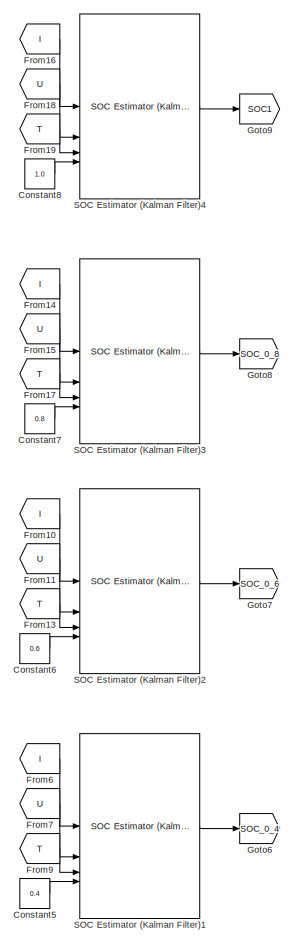
[diagram: root canvas - part 1/3, top center region]
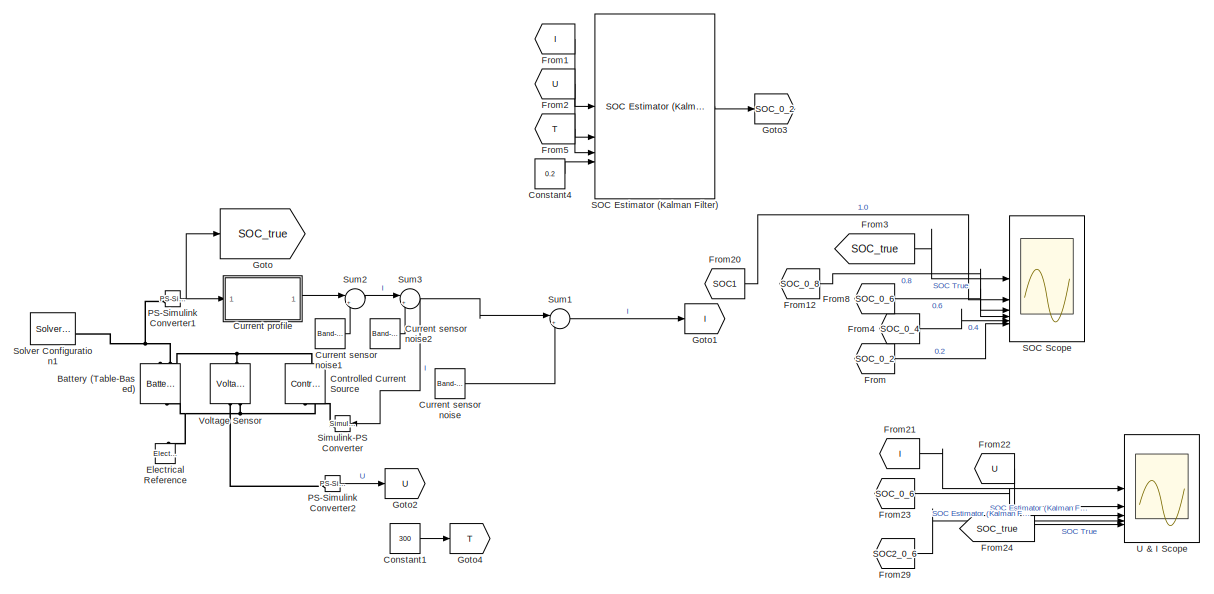
[diagram: root canvas - part 2/3, full width, middle band]
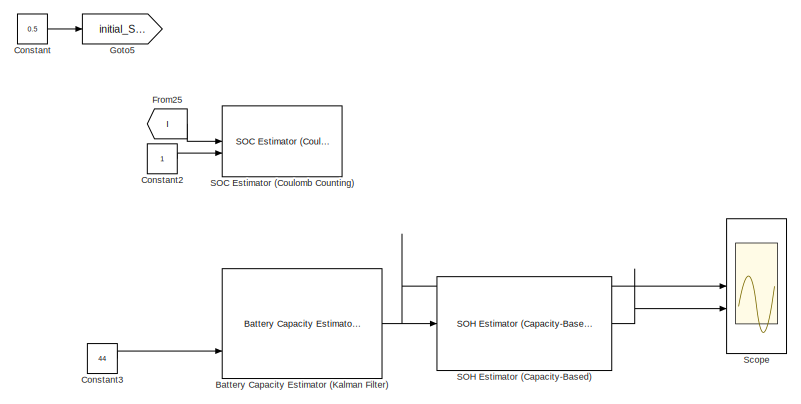
[diagram: root canvas - part 3/3, bottom center region]
MODEL slx_443d475998bf
KIND model
CONFIG AbsTol = auto
CONFIG EnableMultiTasking = off
CONFIG FixedStep = auto
CONFIG MaxStep = auto
CONFIG MinStep = auto
CONFIG RelTol = 1e-3
CONFIG SampleTimeConstraint = Unconstrained
CONFIG SolverName = VariableStepAuto
CONFIG StartTime = 0.0
CONFIG StopTime = 6*3600
BLOCK [Reference] Battery (Table-Based)  REF=batteryecm_lib/Battery
(Table-Based)
  LibrarySourceBlock = batt_lib/Cells/Battery\n(Table-Based)
  NameLocation = right
  SourceBlock = batteryecm_lib/Battery\n(Table-Based)
  SourceType = Battery\n(Table-Based)
BLOCK [Reference] Battery Capacity Estimator (Kalman Filter)  REF=BatteryEstimators/Battery Capacity Estimator
(Kalman Filter)
  Commented = on
  LibrarySourceBlock = batt_sl_lib/Estimators/Battery Capacity Estimator\n(Kalman Filter)
  SourceBlock = BatteryEstimators/Battery Capacity Estimator\n(Kalman Filter)
  SourceType = Battery Capacity Estimator (Kalman Filter)
BLOCK [Constant] Constant
  Value = 0.5
BLOCK [Constant] Constant1
  Value = 300
BLOCK [Constant] Constant2
BLOCK [Constant] Constant3
  Commented = on
  Value = 44
BLOCK [Constant] Constant4
  Value = 0.2
BLOCK [Constant] Constant5
  Value = 0.4
BLOCK [Constant] Constant6
  Value = 0.6
BLOCK [Constant] Constant7
  Value = 0.8
BLOCK [Constant] Constant8
  Value = 1.0
BLOCK [Reference] Controlled Current Source  REF=fl_lib/Electrical/Electrical Sources/Controlled Current
Source
  NameLocation = right
  SourceBlock = fl_lib/Electrical/Electrical Sources/Controlled Current\nSource
  SourceType = Controlled Current\nSource
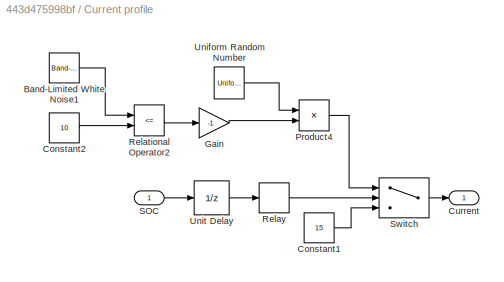
BLOCK [SubSystem] Current profile
BLOCK [Reference] Current profile/Band-Limited White Noise1  REF=simulink/Sources/Band-Limited
White Noise
  SourceBlock = simulink/Sources/Band-Limited\nWhite Noise
  SourceType = Band-Limited White Noise.
BLOCK [Constant] Current profile/Constant1
  Value = 15
BLOCK [Constant] Current profile/Constant2
  Value = 10
BLOCK [Outport] Current profile/Current
BLOCK [Gain] Current profile/Gain
  Gain = -1
BLOCK [Product] Current profile/Product4
BLOCK [RelationalOperator] Current profile/Relational Operator2
  InputSameDT = off
  Operator = <=
  OutDataTypeStr = boolean
  RndMeth = Simplest
BLOCK [Relay] Current profile/Relay
  OffOutputValue = -1
  OffSwitchValue = 0.3
  OnSwitchValue = 0.9
BLOCK [Inport] Current profile/SOC
BLOCK [Switch] Current profile/Switch
  Criteria = u2 > Threshold
  InputSameDT = off
  SaturateOnIntegerOverflow = off
BLOCK [UniformRandomNumber] Current profile/Uniform Random Number
  Maximum = 7
  Minimum = 4
  SampleTime = 600
BLOCK [UnitDelay] Current profile/Unit Delay
  HasFrameUpgradeWarning = on
  SampleTime = Ts
BLOCK [Reference] Current sensor noise  REF=simulink/Sources/Band-Limited
White Noise
  SourceBlock = simulink/Sources/Band-Limited\nWhite Noise
  SourceType = Band-Limited White Noise.
BLOCK [Reference] Current sensor noise1  REF=simulink/Sources/Band-Limited
White Noise
  SourceBlock = simulink/Sources/Band-Limited\nWhite Noise
  SourceType = Band-Limited White Noise.
BLOCK [Reference] Current sensor noise2  REF=simulink/Sources/Band-Limited
White Noise
  SourceBlock = simulink/Sources/Band-Limited\nWhite Noise
  SourceType = Band-Limited White Noise.
BLOCK [Reference] Electrical Reference  REF=fl_lib/Electrical/Electrical Elements/Electrical Reference
  NameLocation = right
  SourceBlock = fl_lib/Electrical/Electrical Elements/Electrical Reference
  SourceType = Electrical Reference
BLOCK [From] From
  GotoTag = SOC_0_2
BLOCK [From] From1
  GotoTag = I
BLOCK [From] From10
  GotoTag = I
BLOCK [From] From11
  GotoTag = U
BLOCK [From] From12
  GotoTag = SOC_0_8
BLOCK [From] From13
  GotoTag = T
BLOCK [From] From14
  GotoTag = I
BLOCK [From] From15
  GotoTag = U
BLOCK [From] From16
  GotoTag = I
BLOCK [From] From17
  GotoTag = T
BLOCK [From] From18
  GotoTag = U
BLOCK [From] From19
  GotoTag = T
BLOCK [From] From2
  GotoTag = U
BLOCK [From] From20
  GotoTag = SOC1
BLOCK [From] From21
  GotoTag = I
BLOCK [From] From22
  GotoTag = U
BLOCK [From] From23
  GotoTag = SOC_0_6
BLOCK [From] From24
  GotoTag = SOC_true
BLOCK [From] From25
  GotoTag = I
BLOCK [From] From29
  GotoTag = SOC2_0_6
BLOCK [From] From3
  GotoTag = SOC_true
BLOCK [From] From4
  GotoTag = SOC_0_4
BLOCK [From] From5
  GotoTag = T
BLOCK [From] From6
  GotoTag = I
BLOCK [From] From7
  GotoTag = U
BLOCK [From] From8
  GotoTag = SOC_0_6
BLOCK [From] From9
  GotoTag = T
BLOCK [Goto] Goto
  GotoTag = SOC_true
BLOCK [Goto] Goto1
  GotoTag = I
BLOCK [Goto] Goto2
  GotoTag = U
BLOCK [Goto] Goto3
  GotoTag = SOC_0_2
BLOCK [Goto] Goto4
  GotoTag = T
BLOCK [Goto] Goto5
  GotoTag = initial_SOC
BLOCK [Goto] Goto6
  GotoTag = SOC_0_4
BLOCK [Goto] Goto7
  GotoTag = SOC_0_6
BLOCK [Goto] Goto8
  GotoTag = SOC_0_8
BLOCK [Goto] Goto9
  GotoTag = SOC1
BLOCK [Reference] PS-Simulink Converter1  REF=nesl_utility/PS-Simulink
Converter
  SourceBlock = nesl_utility/PS-Simulink\nConverter
  SourceType = PS-Simulink\nConverter
BLOCK [Reference] PS-Simulink Converter2  REF=nesl_utility/PS-Simulink
Converter
  SourceBlock = nesl_utility/PS-Simulink\nConverter
  SourceType = PS-Simulink\nConverter
BLOCK [Reference] SOC Estimator (Coulomb Counting)   REF=BatteryEstimators/SOC Estimator
(Coulomb Counting)
  LibrarySourceBlock = batt_sl_lib/Estimators/SOC Estimator\n(Coulomb Counting)
  SourceBlock = BatteryEstimators/SOC Estimator\n(Coulomb Counting)
  SourceType = SOC Estimator (Coulomb Counting)
BLOCK [Reference] SOC Estimator (Kalman Filter)  REF=BatteryEstimators/SOC Estimator
(Kalman Filter)
  SourceBlock = BatteryEstimators/SOC Estimator\n(Kalman Filter)
  SourceType = SOC Estimator (Kalman Filter)
BLOCK [Reference] SOC Estimator (Kalman Filter)1  REF=BatteryEstimators/SOC Estimator
(Kalman Filter)
  SourceBlock = BatteryEstimators/SOC Estimator\n(Kalman Filter)
  SourceType = SOC Estimator (Kalman Filter)
BLOCK [Reference] SOC Estimator (Kalman Filter)2  REF=BatteryEstimators/SOC Estimator
(Kalman Filter)
  SourceBlock = BatteryEstimators/SOC Estimator\n(Kalman Filter)
  SourceType = SOC Estimator (Kalman Filter)
BLOCK [Reference] SOC Estimator (Kalman Filter)3  REF=BatteryEstimators/SOC Estimator
(Kalman Filter)
  SourceBlock = BatteryEstimators/SOC Estimator\n(Kalman Filter)
  SourceType = SOC Estimator (Kalman Filter)
BLOCK [Reference] SOC Estimator (Kalman Filter)4  REF=BatteryEstimators/SOC Estimator
(Kalman Filter)
  SourceBlock = BatteryEstimators/SOC Estimator\n(Kalman Filter)
  SourceType = SOC Estimator (Kalman Filter)
BLOCK [Scope] SOC Scope
  Floating = off
  NumInputPorts = 6
  ScopeSpecificationString = Simulink.scopes.TimeScopeBlockCfg('CurrentConfiguration', extmgr.ConfigurationSet(extmgr.Configuration('Core','General UI',true,'FigureColor',[1 1 1]),extmgr.Configuration('Core','Source UI',true),extmgr.Configuration('Sources','WiredSimulink',true,'DataLogging',true,'DataLoggingSaveFormat','StructureWithTime'),extmgr.Configuration('Visuals','Time Domain',true,'SerializedDisplays',{struct('MinYLim...<+1774ch>
BLOCK [Reference] SOH Estimator (Capacity-Based)  REF=BatteryEstimators/SOH Estimator (Capacity-Based)
  Commented = on
  LibrarySourceBlock = batt_sl_lib/Estimators/SOH Estimator (Capacity-Based)
  SourceBlock = BatteryEstimators/SOH Estimator (Capacity-Based)
  SourceType = SOH Estimator (Capacity-Based)
BLOCK [Scope] Scope
  Commented = on
  Floating = off
  NumInputPorts = 4
  ScopeSpecificationString = Simulink.scopes.TimeScopeBlockCfg('CurrentConfiguration', extmgr.ConfigurationSet(extmgr.Configuration('Core','General UI',true),extmgr.Configuration('Core','Source UI',true),extmgr.Configuration('Sources','WiredSimulink',true,'DataLoggingVariableName','soh_data','DataLogging',true,'DataLoggingSaveFormat','StructureWithTime','SampleTime','1'),extmgr.Configuration('Visuals','Time Domain',true,'Seri...<+3890ch>
BLOCK [Reference] Simulink-PS Converter  REF=nesl_utility/Simulink-PS
Converter
  NameLocation = top
  SourceBlock = nesl_utility/Simulink-PS\nConverter
  SourceType = Simulink-PS\nConverter
BLOCK [Reference] Solver Configuration1  REF=nesl_utility/Solver
Configuration
  SourceBlock = nesl_utility/Solver\nConfiguration
  SourceType = Solver\nConfiguration
BLOCK [Sum] Sum1
  Inputs = |++
BLOCK [Sum] Sum2
  Inputs = |++
  NameLocation = top
BLOCK [Sum] Sum3
  Inputs = |++
  NameLocation = top
BLOCK [Scope] U & I Scope
  Floating = off
  NumInputPorts = 5
  ScopeSpecificationString = Simulink.scopes.TimeScopeBlockCfg('CurrentConfiguration', extmgr.ConfigurationSet(extmgr.Configuration('Core','General UI',true,'FigureColor',[1 1 1]),extmgr.Configuration('Core','Source UI',true),extmgr.Configuration('Sources','WiredSimulink',true,'DataLoggingVariableName','voltage_current_sim_data','DataLogging',true,'DataLoggingSaveFormat','StructureWithTime','SampleTime','1'),extmgr.Configurat...<+3756ch>
BLOCK [Reference] Voltage Sensor  REF=fl_lib/Electrical/Electrical Sensors/Voltage Sensor
  NameLocation = right
  SourceBlock = fl_lib/Electrical/Electrical Sensors/Voltage Sensor
  SourceType = Voltage Sensor
NET Battery Capacity Estimator (Kalman Filter):1 -> SOH Estimator (Capacity-Based):1, Scope:1
LINE Constant1:1 -> Goto4:1
LINE Constant2:1 -> SOC Estimator (Coulomb Counting) :2
LINE Constant3:1 -> Battery Capacity Estimator (Kalman Filter):3
LINE Constant4:1 -> SOC Estimator (Kalman Filter):4
LINE Constant5:1 -> SOC Estimator (Kalman Filter)1:4
LINE Constant6:1 -> SOC Estimator (Kalman Filter)2:4
LINE Constant7:1 -> SOC Estimator (Kalman Filter)3:4
LINE Constant8:1 -> SOC Estimator (Kalman Filter)4:4
LINE Constant:1 -> Goto5:1
LINE Current profile/Band-Limited White Noise1:1 -> Current profile/Relational Operator2:1
LINE Current profile/Constant1:1 -> Current profile/Switch:3
LINE Current profile/Constant2:1 -> Current profile/Relational Operator2:2
LINE Current profile/Gain:1 -> Current profile/Product4:2
LINE Current profile/Product4:1 -> Current profile/Switch:1
LINE Current profile/Relational Operator2:1 -> Current profile/Gain:1
LINE Current profile/Relay:1 -> Current profile/Switch:2
LINE Current profile/SOC:1 -> Current profile/Unit Delay:1
LINE Current profile/Switch:1 -> Current profile/Current:1
LINE Current profile/Uniform Random Number:1 -> Current profile/Product4:1
LINE Current profile/Unit Delay:1 -> Current profile/Relay:1
LINE Current profile:1 -> Sum2:1
LINE Current sensor noise1:1 -> Sum2:2
LINE Current sensor noise2:1 -> Sum3:2
LINE Current sensor noise:1 -> Sum1:2
LINE From10:1 -> SOC Estimator (Kalman Filter)2:1
LINE From11:1 -> SOC Estimator (Kalman Filter)2:2
LINE From12:1 -> SOC Scope:3
LINE From13:1 -> SOC Estimator (Kalman Filter)2:3
LINE From14:1 -> SOC Estimator (Kalman Filter)3:1
LINE From15:1 -> SOC Estimator (Kalman Filter)3:2
LINE From16:1 -> SOC Estimator (Kalman Filter)4:1
LINE From17:1 -> SOC Estimator (Kalman Filter)3:3
LINE From18:1 -> SOC Estimator (Kalman Filter)4:2
LINE From19:1 -> SOC Estimator (Kalman Filter)4:3
LINE From1:1 -> SOC Estimator (Kalman Filter):1
LINE From20:1 -> SOC Scope:2
LINE From21:1 -> U & I Scope:1
LINE From22:1 -> U & I Scope:2
LINE From23:1 -> U & I Scope:3
LINE From24:1 -> U & I Scope:5
LINE From25:1 -> SOC Estimator (Coulomb Counting) :1
LINE From29:1 -> U & I Scope:4
LINE From2:1 -> SOC Estimator (Kalman Filter):2
LINE From3:1 -> SOC Scope:1
LINE From4:1 -> SOC Scope:5
LINE From5:1 -> SOC Estimator (Kalman Filter):3
LINE From6:1 -> SOC Estimator (Kalman Filter)1:1
LINE From7:1 -> SOC Estimator (Kalman Filter)1:2
LINE From8:1 -> SOC Scope:4
LINE From9:1 -> SOC Estimator (Kalman Filter)1:3
LINE From:1 -> SOC Scope:6
NET PS-Simulink Converter1:1 -> Current profile:1, Goto:1
LINE PS-Simulink Converter2:1 -> Goto2:1
LINE SOC Estimator (Kalman Filter)1:1 -> Goto6:1
LINE SOC Estimator (Kalman Filter)2:1 -> Goto7:1
LINE SOC Estimator (Kalman Filter)3:1 -> Goto8:1
LINE SOC Estimator (Kalman Filter)4:1 -> Goto9:1
LINE SOC Estimator (Kalman Filter):1 -> Goto3:1
LINE SOH Estimator (Capacity-Based):1 -> Scope:2
LINE Sum1:1 -> Goto1:1
LINE Sum2:1 -> Sum3:1
NET Sum3:1 -> Simulink-PS Converter:1, Sum1:1
PNET net1: Battery (Table-Based):LConn1 -- Controlled Current Source:LConn1 -- Voltage Sensor:LConn1
PNET net2: Battery (Table-Based):LConn2 -- PS-Simulink Converter1:LConn1 -- Solver Configuration1:RConn1
PNET net3: Battery (Table-Based):RConn1 -- Controlled Current Source:RConn2 -- Electrical Reference:LConn1 -- Voltage Sensor:RConn2
PLINE Controlled Current Source:RConn1 -- Simulink-PS Converter:RConn1
PLINE PS-Simulink Converter2:LConn1 -- Voltage Sensor:RConn1
note: NET lines group one-source signal fan-out (src -> all destinations, sorted); 1:1 wires keep LINE; PNET lines group multi-terminal physical nets as a canonical sorted terminal list (undirected conserving connections); 2-terminal nets keep the pairwise PLINE form
